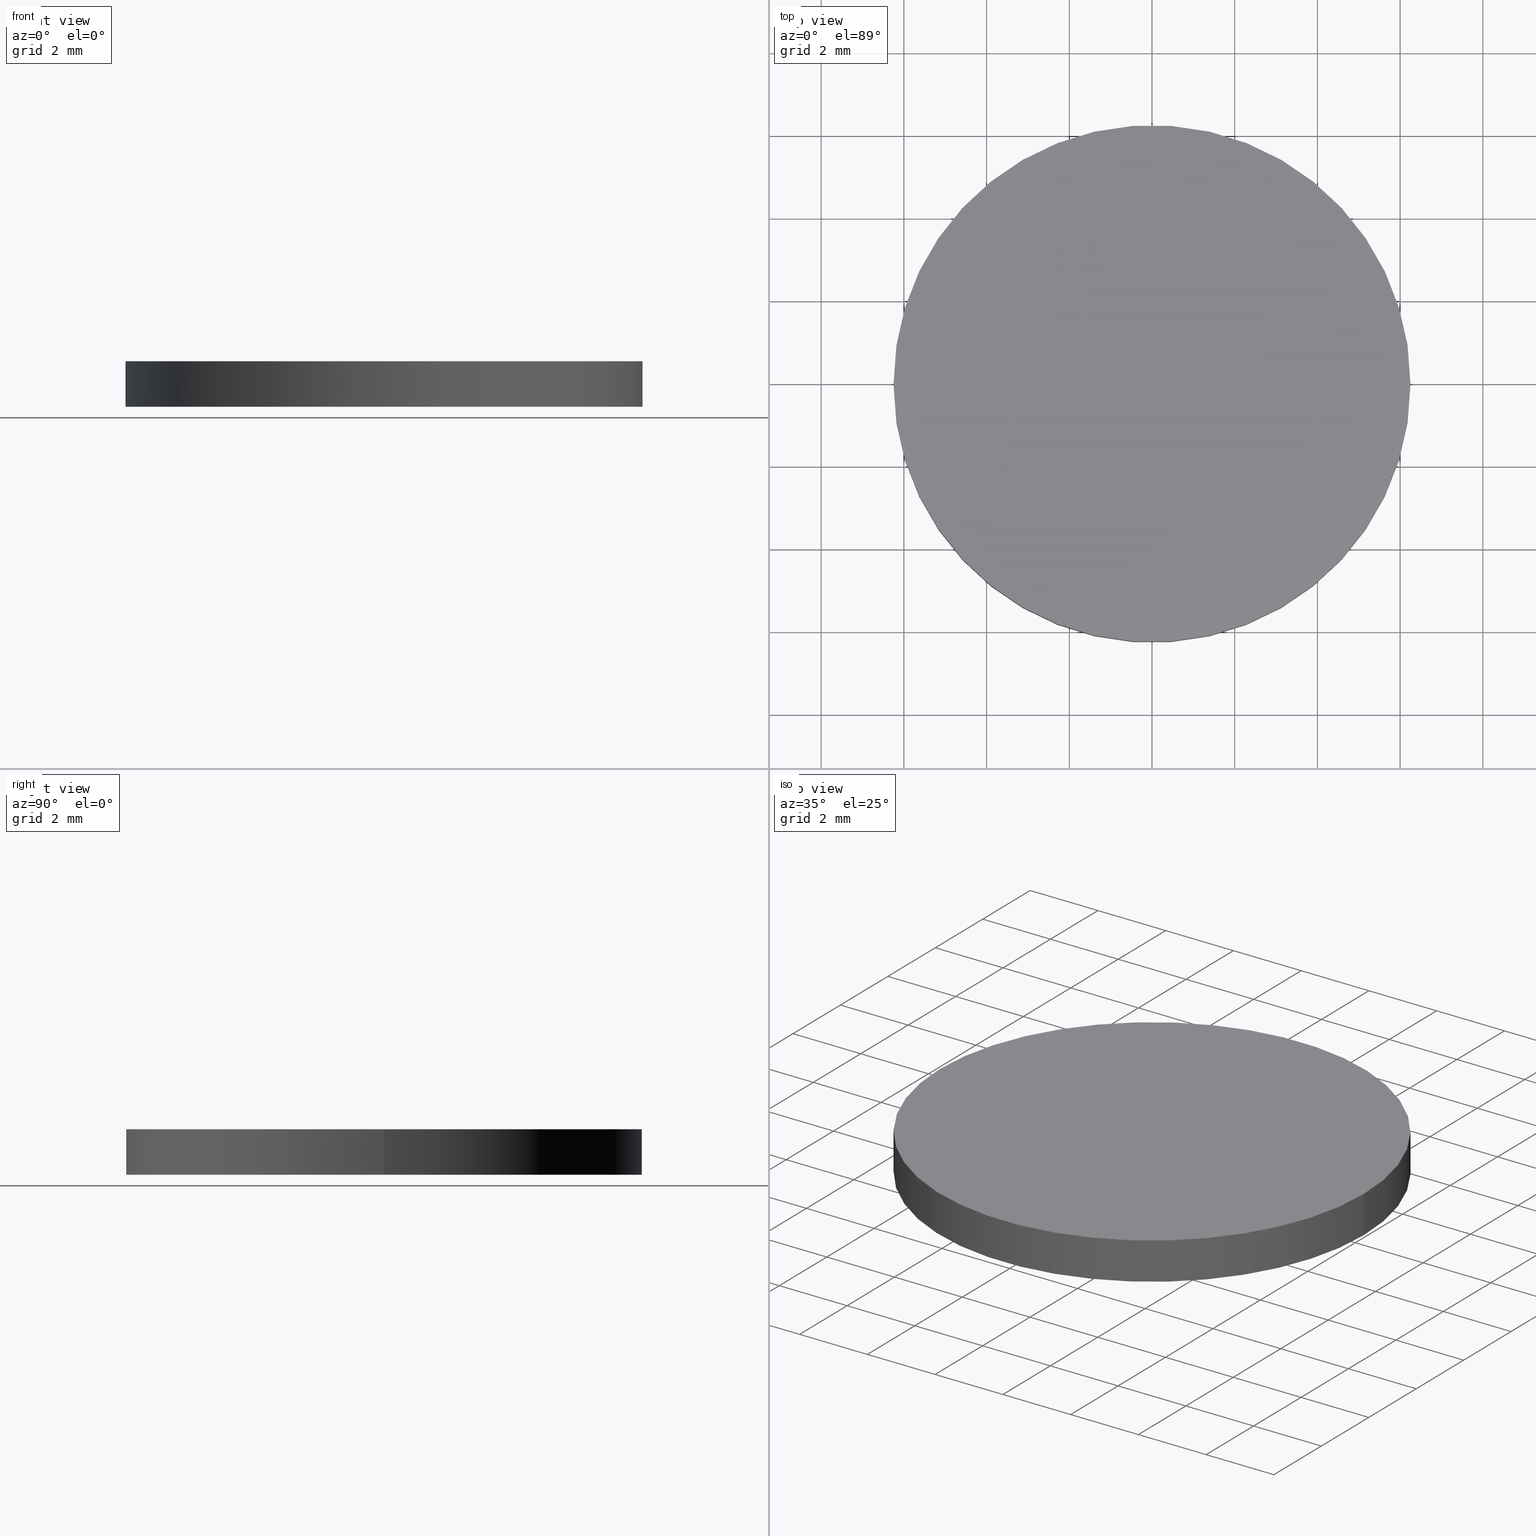
[diagram: canonical four-view strip — front | top / right | iso, engineering-drawing reading convention]
A machine part, canonical four-view strip (front | top / right | iso — engineering-drawing reading convention). The complete STEP part file that produces these views, byte-faithful:
ISO-10303-21;
HEADER;
FILE_DESCRIPTION (( 'STEP AP203' ),
    '1' );
FILE_NAME ('348500.STEP',
    '2019-07-31T06:48:11',
    ( '' ),
    ( '' ),
    'SwSTEP 2.0',
    'SolidWorks 2016',
    '' );
FILE_SCHEMA (( 'CONFIG_CONTROL_DESIGN' ));
ENDSEC;

DATA;
#1 = DIRECTION ( 'NONE',  ( 1.000000000000000000, 0.0000000000000000000, -0.0000000000000000000 ) ) ;
#2 = AXIS2_PLACEMENT_3D ( 'NONE', #172, #102, #7 ) ;
#3 = CC_DESIGN_PERSON_AND_ORGANIZATION_ASSIGNMENT ( #44, #139, ( #21 ) ) ;
#4 = PRODUCT_RELATED_PRODUCT_CATEGORY ( 'detail', '', ( #140 ) ) ;
#5 = VERTEX_POINT ( 'NONE', #84 ) ;
#6 = DATE_AND_TIME ( #57, #51 ) ;
#7 = DIRECTION ( 'NONE',  ( 1.000000000000000000, 0.0000000000000000000, 0.0000000000000000000 ) ) ;
#8 = APPROVAL_ROLE ( '' ) ;
#9 = CARTESIAN_POINT ( 'NONE',  ( 0.0000000000000000000, 0.0000000000000000000, 0.0000000000000000000 ) ) ;
#10 = PERSON_AND_ORGANIZATION ( #145, #245 ) ;
#11 =( GEOMETRIC_REPRESENTATION_CONTEXT ( 3 ) GLOBAL_UNCERTAINTY_ASSIGNED_CONTEXT ( ( #214 ) ) GLOBAL_UNIT_ASSIGNED_CONTEXT ( ( #156, #137, #72 ) ) REPRESENTATION_CONTEXT ( 'NONE', 'WORKASPACE' ) );
#12 = COORDINATED_UNIVERSAL_TIME_OFFSET ( 8, 0, .AHEAD. ) ;
#13 = SECURITY_CLASSIFICATION_LEVEL ( 'unclassified' ) ;
#14 = APPROVAL_STATUS ( 'not_yet_approved' ) ;
#15 = APPROVAL_STATUS ( 'not_yet_approved' ) ;
#16 = ORIENTED_EDGE ( 'NONE', *, *, #169, .F. ) ;
#17 = PERSON_AND_ORGANIZATION ( #145, #245 ) ;
#18 = LOCAL_TIME ( 14, 48, 11.00000000000000000, #199 ) ;
#19 = LOCAL_TIME ( 14, 48, 11.00000000000000000, #106 ) ;
#20 = APPROVAL ( #15, 'δָ��' ) ;
#21 = PRODUCT_DEFINITION_FORMATION_WITH_SPECIFIED_SOURCE ( '�κ�', '', #204, .NOT_KNOWN. ) ;
#22 = ORIENTED_EDGE ( 'NONE', *, *, #159, .T. ) ;
#23 = CALENDAR_DATE ( 2019, 31, 7 ) ;
#24 = AXIS2_PLACEMENT_3D ( 'NONE', #153, #194, #25 ) ;
#25 = DIRECTION ( 'NONE',  ( -1.000000000000000000, 0.0000000000000000000, 0.0000000000000000000 ) ) ;
#26 = CARTESIAN_POINT ( 'NONE',  ( 6.249999999999998200, 7.654042494670955600E-016, 1.100000000000000100 ) ) ;
#27 = CC_DESIGN_SECURITY_CLASSIFICATION ( #39, ( #225 ) ) ;
#28 = ORIENTED_EDGE ( 'NONE', *, *, #159, .F. ) ;
#29 = PERSON_AND_ORGANIZATION_ROLE ( 'design_supplier' ) ;
#30 = MECHANICAL_CONTEXT ( 'NONE', #105, 'mechanical' ) ;
#31 = CIRCLE ( 'NONE', #184, 6.249999999999998200 ) ;
#32 = SECURITY_CLASSIFICATION ( '', '', #49 ) ;
#33 = APPROVAL_ROLE ( '' ) ;
#34 = CC_DESIGN_PERSON_AND_ORGANIZATION_ASSIGNMENT ( #155, #92, ( #211 ) ) ;
#35 = PERSON_AND_ORGANIZATION ( #145, #245 ) ;
#36 = APPROVAL ( #122, 'δָ��' ) ;
#37 = VERTEX_POINT ( 'NONE', #230 ) ;
#38 = LOCAL_TIME ( 14, 48, 11.00000000000000000, #253 ) ;
#39 = SECURITY_CLASSIFICATION ( '', '', #13 ) ;
#40 = CARTESIAN_POINT ( 'NONE',  ( 0.0000000000000000000, 0.0000000000000000000, 0.0000000000000000000 ) ) ;
#41 = DESIGN_CONTEXT ( 'detailed design', #158, 'design' ) ;
#42 = CC_DESIGN_PERSON_AND_ORGANIZATION_ASSIGNMENT ( #168, #235, ( #225 ) ) ;
#43 = FACE_OUTER_BOUND ( 'NONE', #96, .T. ) ;
#44 = PERSON_AND_ORGANIZATION ( #145, #245 ) ;
#45 = DIRECTION ( 'NONE',  ( 1.000000000000000000, 0.0000000000000000000, 0.0000000000000000000 ) ) ;
#46 = CC_DESIGN_APPROVAL ( #36, ( #32 ) ) ;
#47 = PERSON_AND_ORGANIZATION ( #145, #245 ) ;
#48 = PERSON_AND_ORGANIZATION ( #145, #245 ) ;
#49 = SECURITY_CLASSIFICATION_LEVEL ( 'unclassified' ) ;
#50 = CYLINDRICAL_SURFACE ( 'NONE', #177, 6.249999999999998200 ) ;
#51 = LOCAL_TIME ( 14, 48, 11.00000000000000000, #175 ) ;
#52 = CC_DESIGN_PERSON_AND_ORGANIZATION_ASSIGNMENT ( #101, #178, ( #204 ) ) ;
#53 = DATE_AND_TIME ( #212, #18 ) ;
#54 = CALENDAR_DATE ( 2019, 31, 7 ) ;
#55 = PRODUCT_DEFINITION_SHAPE ( 'NONE', 'NONE',  #152 ) ;
#56 = CC_DESIGN_PERSON_AND_ORGANIZATION_ASSIGNMENT ( #10, #90, ( #140 ) ) ;
#57 = CALENDAR_DATE ( 2019, 31, 7 ) ;
#58 = APPROVAL_PERSON_ORGANIZATION ( #47, #217, #33 ) ;
#59 = PERSON_AND_ORGANIZATION ( #145, #245 ) ;
#60 = DIRECTION ( 'NONE',  ( -0.0000000000000000000, -0.0000000000000000000, -1.000000000000000000 ) ) ;
#61 = DIRECTION ( 'NONE',  ( -0.0000000000000000000, -0.0000000000000000000, -1.000000000000000000 ) ) ;
#62 = CARTESIAN_POINT ( 'NONE',  ( 0.0000000000000000000, 0.0000000000000000000, 1.100000000000000100 ) ) ;
#63 = FACE_OUTER_BOUND ( 'NONE', #193, .T. ) ;
#64 = DIRECTION ( 'NONE',  ( 0.0000000000000000000, 0.0000000000000000000, 1.000000000000000000 ) ) ;
#65 = DATE_AND_TIME ( #208, #190 ) ;
#66 = CARTESIAN_POINT ( 'NONE',  ( 0.0000000000000000000, 0.0000000000000000000, 1.100000000000000100 ) ) ;
#67 = CC_DESIGN_APPROVAL ( #110, ( #39 ) ) ;
#68 = APPROVAL_PERSON_ORGANIZATION ( #165, #20, #154 ) ;
#69 = APPROVAL_STATUS ( 'not_yet_approved' ) ;
#70 = DESIGN_CONTEXT ( 'detailed design', #71, 'design' ) ;
#71 = APPLICATION_CONTEXT ( 'configuration controlled 3d designs of mechanical parts and assemblies' ) ;
#72 =( NAMED_UNIT ( * ) SI_UNIT ( $, .STERADIAN. ) SOLID_ANGLE_UNIT ( ) );
#73 = ORIENTED_EDGE ( 'NONE', *, *, #239, .T. ) ;
#74 = CALENDAR_DATE ( 2019, 31, 7 ) ;
#75 = AXIS2_PLACEMENT_3D ( 'NONE', #9, #103, #196 ) ;
#76 = LINE ( 'NONE', #118, #113 ) ;
#77 = ORIENTED_EDGE ( 'NONE', *, *, #169, .T. ) ;
#78 = ADVANCED_FACE ( 'NONE', ( #226 ), #182, .T. ) ;
#79 = CC_DESIGN_APPROVAL ( #217, ( #211 ) ) ;
#80 = CLOSED_SHELL ( 'NONE', ( #78, #166, #188, #186 ) ) ;
#81 = DATE_AND_TIME ( #234, #38 ) ;
#82 = ADVANCED_BREP_SHAPE_REPRESENTATION ( '348500', ( #136, #233 ), #11 ) ;
#83 = PLANE ( 'NONE',  #164 ) ;
#84 = CARTESIAN_POINT ( 'NONE',  ( 6.249999999999998200, 7.654042494670955600E-016, 1.100000000000000100 ) ) ;
#85 = CIRCLE ( 'NONE', #114, 6.249999999999998200 ) ;
#86 = CARTESIAN_POINT ( 'NONE',  ( -6.249999999999998200, 0.0000000000000000000, 0.0000000000000000000 ) ) ;
#87 = CC_DESIGN_APPROVAL ( #142, ( #225 ) ) ;
#88 = DIRECTION ( 'NONE',  ( -0.0000000000000000000, -0.0000000000000000000, -1.000000000000000000 ) ) ;
#89 = APPROVAL_DATE_TIME ( #94, #20 ) ;
#90 = PERSON_AND_ORGANIZATION_ROLE ( 'design_owner' ) ;
#91 = APPLICATION_CONTEXT ( 'configuration controlled 3d designs of mechanical parts and assemblies' ) ;
#92 = PERSON_AND_ORGANIZATION_ROLE ( 'creator' ) ;
#93 = DATE_AND_TIME ( #228, #157 ) ;
#94 = DATE_AND_TIME ( #54, #19 ) ;
#95 = CC_DESIGN_DATE_AND_TIME_ASSIGNMENT ( #104, #176, ( #211 ) ) ;
#96 = EDGE_LOOP ( 'NONE', ( #171, #180 ) ) ;
#97 = LOCAL_TIME ( 14, 48, 11.00000000000000000, #144 ) ;
#98 = LOCAL_TIME ( 14, 48, 11.00000000000000000, #146 ) ;
#99 = DATE_AND_TIME ( #124, #149 ) ;
#100 = DIRECTION ( 'NONE',  ( -1.000000000000000000, 0.0000000000000000000, 0.0000000000000000000 ) ) ;
#101 = PERSON_AND_ORGANIZATION ( #145, #245 ) ;
#102 = DIRECTION ( 'NONE',  ( 0.0000000000000000000, 0.0000000000000000000, 1.000000000000000000 ) ) ;
#103 = DIRECTION ( 'NONE',  ( 0.0000000000000000000, 0.0000000000000000000, 1.000000000000000000 ) ) ;
#104 = DATE_AND_TIME ( #207, #98 ) ;
#105 = APPLICATION_CONTEXT ( 'configuration controlled 3d designs of mechanical parts and assemblies' ) ;
#106 = COORDINATED_UNIVERSAL_TIME_OFFSET ( 8, 0, .AHEAD. ) ;
#107 = PERSON_AND_ORGANIZATION_ROLE ( 'creator' ) ;
#108 = DATE_TIME_ROLE ( 'classification_date' ) ;
#109 = APPROVAL_DATE_TIME ( #93, #110 ) ;
#110 = APPROVAL ( #135, 'δָ��' ) ;
#111 = APPROVAL_DATE_TIME ( #53, #217 ) ;
#112 = APPROVAL_PERSON_ORGANIZATION ( #221, #126, #201 ) ;
#113 = VECTOR ( 'NONE', #60, 1000.000000000000000 ) ;
#114 = AXIS2_PLACEMENT_3D ( 'NONE', #198, #120, #203 ) ;
#115 = ORIENTED_EDGE ( 'NONE', *, *, #128, .F. ) ;
#116 = APPROVAL_DATE_TIME ( #99, #126 ) ;
#117 = DIRECTION ( 'NONE',  ( 0.0000000000000000000, 0.0000000000000000000, 1.000000000000000000 ) ) ;
#118 = CARTESIAN_POINT ( 'NONE',  ( -6.249999999999998200, 0.0000000000000000000, 1.100000000000000100 ) ) ;
#119 = ORIENTED_EDGE ( 'NONE', *, *, #134, .T. ) ;
#120 = DIRECTION ( 'NONE',  ( 0.0000000000000000000, 0.0000000000000000000, 1.000000000000000000 ) ) ;
#121 = DATE_TIME_ROLE ( 'classification_date' ) ;
#122 = APPROVAL_STATUS ( 'not_yet_approved' ) ;
#123 = EDGE_LOOP ( 'NONE', ( #28, #77, #119, #115 ) ) ;
#124 = CALENDAR_DATE ( 2019, 31, 7 ) ;
#125 = VECTOR ( 'NONE', #88, 1000.000000000000000 ) ;
#126 = APPROVAL ( #14, 'δָ��' ) ;
#127 = APPROVAL_DATE_TIME ( #162, #142 ) ;
#128 = EDGE_CURVE ( 'NONE', #209, #161, #76, .T. ) ;
#129 = DIRECTION ( 'NONE',  ( 0.0000000000000000000, 0.0000000000000000000, 1.000000000000000000 ) ) ;
#130 = EDGE_LOOP ( 'NONE', ( #73, #22 ) ) ;
#131 = DIRECTION ( 'NONE',  ( 0.0000000000000000000, 0.0000000000000000000, 1.000000000000000000 ) ) ;
#132 = CARTESIAN_POINT ( 'NONE',  ( -6.249999999999998200, 0.0000000000000000000, 1.100000000000000100 ) ) ;
#133 = APPROVAL_PERSON_ORGANIZATION ( #35, #110, #8 ) ;
#134 = EDGE_CURVE ( 'NONE', #37, #161, #163, .T. ) ;
#135 = APPROVAL_STATUS ( 'not_yet_approved' ) ;
#136 = MANIFOLD_SOLID_BREP ( '͹̨-����1', #80 ) ;
#137 =( NAMED_UNIT ( * ) PLANE_ANGLE_UNIT ( ) SI_UNIT ( $, .RADIAN. ) );
#138 = COORDINATED_UNIVERSAL_TIME_OFFSET ( 8, 0, .AHEAD. ) ;
#139 = PERSON_AND_ORGANIZATION_ROLE ( 'design_supplier' ) ;
#140 = PRODUCT ( '348500', '348500', '', ( #197 ) ) ;
#141 = APPROVAL_ROLE ( '' ) ;
#142 = APPROVAL ( #223, 'δָ��' ) ;
#143 = ORIENTED_EDGE ( 'NONE', *, *, #148, .T. ) ;
#144 = COORDINATED_UNIVERSAL_TIME_OFFSET ( 8, 0, .AHEAD. ) ;
#145 = PERSON ( 'δָ��', 'δָ��', 'δָ��', ('δָ��'), ('δָ��'), ('δָ��') ) ;
#146 = COORDINATED_UNIVERSAL_TIME_OFFSET ( 8, 0, .AHEAD. ) ;
#147 = COORDINATED_UNIVERSAL_TIME_OFFSET ( 8, 0, .AHEAD. ) ;
#148 = EDGE_CURVE ( 'NONE', #161, #37, #249, .T. ) ;
#149 = LOCAL_TIME ( 14, 48, 11.00000000000000000, #138 ) ;
#150 = CC_DESIGN_APPROVAL ( #20, ( #21 ) ) ;
#151 = CARTESIAN_POINT ( 'NONE',  ( 0.0000000000000000000, 0.0000000000000000000, 0.0000000000000000000 ) ) ;
#152 = PRODUCT_DEFINITION ( 'δ֪', '', #21, #70 ) ;
#153 = CARTESIAN_POINT ( 'NONE',  ( 0.0000000000000000000, 0.0000000000000000000, 1.100000000000000100 ) ) ;
#154 = APPROVAL_ROLE ( '' ) ;
#155 = PERSON_AND_ORGANIZATION ( #145, #245 ) ;
#156 =( LENGTH_UNIT ( ) NAMED_UNIT ( * ) SI_UNIT ( .MILLI., .METRE. ) );
#157 = LOCAL_TIME ( 14, 48, 11.00000000000000000, #244 ) ;
#158 = APPLICATION_CONTEXT ( 'configuration controlled 3d designs of mechanical parts and assemblies' ) ;
#159 = EDGE_CURVE ( 'NONE', #5, #209, #31, .T. ) ;
#160 = PERSON_AND_ORGANIZATION_ROLE ( 'classification_officer' ) ;
#161 = VERTEX_POINT ( 'NONE', #86 ) ;
#162 = DATE_AND_TIME ( #23, #97 ) ;
#163 = CIRCLE ( 'NONE', #222, 6.249999999999998200 ) ;
#164 = AXIS2_PLACEMENT_3D ( 'NONE', #151, #64, #192 ) ;
#165 = PERSON_AND_ORGANIZATION ( #145, #245 ) ;
#166 = ADVANCED_FACE ( 'NONE', ( #63 ), #50, .T. ) ;
#167 = CC_DESIGN_PERSON_AND_ORGANIZATION_ASSIGNMENT ( #48, #29, ( #225 ) ) ;
#168 = PERSON_AND_ORGANIZATION ( #145, #245 ) ;
#169 = EDGE_CURVE ( 'NONE', #5, #37, #231, .T. ) ;
#170 = DIRECTION ( 'NONE',  ( 1.000000000000000000, 0.0000000000000000000, 0.0000000000000000000 ) ) ;
#171 = ORIENTED_EDGE ( 'NONE', *, *, #148, .F. ) ;
#172 = CARTESIAN_POINT ( 'NONE',  ( 0.0000000000000000000, 0.0000000000000000000, 0.0000000000000000000 ) ) ;
#173 = DIRECTION ( 'NONE',  ( 0.0000000000000000000, 0.0000000000000000000, 1.000000000000000000 ) ) ;
#174 = APPLICATION_PROTOCOL_DEFINITION ( 'international standard', 'config_control_design', 1994, #91 ) ;
#175 = COORDINATED_UNIVERSAL_TIME_OFFSET ( 8, 0, .AHEAD. ) ;
#176 = DATE_TIME_ROLE ( 'creation_date' ) ;
#177 = AXIS2_PLACEMENT_3D ( 'NONE', #216, #61, #100 ) ;
#178 = PERSON_AND_ORGANIZATION_ROLE ( 'design_owner' ) ;
#179 = PERSON_AND_ORGANIZATION_ROLE ( 'classification_officer' ) ;
#180 = ORIENTED_EDGE ( 'NONE', *, *, #134, .F. ) ;
#181 = CC_DESIGN_PERSON_AND_ORGANIZATION_ASSIGNMENT ( #246, #160, ( #39 ) ) ;
#182 = CYLINDRICAL_SURFACE ( 'NONE', #24, 6.249999999999998200 ) ;
#183 = DATE_AND_TIME ( #74, #206 ) ;
#184 = AXIS2_PLACEMENT_3D ( 'NONE', #62, #173, #232 ) ;
#185 = ORIENTED_EDGE ( 'NONE', *, *, #128, .T. ) ;
#186 = ADVANCED_FACE ( 'NONE', ( #43 ), #83, .F. ) ;
#187 = APPROVAL_PERSON_ORGANIZATION ( #252, #142, #236 ) ;
#188 = ADVANCED_FACE ( 'NONE', ( #243 ), #219, .T. ) ;
#189 = SHAPE_DEFINITION_REPRESENTATION ( #55, #82 ) ;
#190 = LOCAL_TIME ( 14, 48, 11.00000000000000000, #12 ) ;
#191 = CC_DESIGN_PERSON_AND_ORGANIZATION_ASSIGNMENT ( #59, #179, ( #32 ) ) ;
#192 = DIRECTION ( 'NONE',  ( 1.000000000000000000, 0.0000000000000000000, -0.0000000000000000000 ) ) ;
#193 = EDGE_LOOP ( 'NONE', ( #16, #218, #185, #143 ) ) ;
#194 = DIRECTION ( 'NONE',  ( -0.0000000000000000000, -0.0000000000000000000, -1.000000000000000000 ) ) ;
#195 = CC_DESIGN_APPROVAL ( #126, ( #152 ) ) ;
#196 = DIRECTION ( 'NONE',  ( 1.000000000000000000, 0.0000000000000000000, 0.0000000000000000000 ) ) ;
#197 = MECHANICAL_CONTEXT ( 'NONE', #91, 'mechanical' ) ;
#198 = CARTESIAN_POINT ( 'NONE',  ( 0.0000000000000000000, 0.0000000000000000000, 1.100000000000000100 ) ) ;
#199 = COORDINATED_UNIVERSAL_TIME_OFFSET ( 8, 0, .AHEAD. ) ;
#200 = APPROVAL_DATE_TIME ( #81, #36 ) ;
#201 = APPROVAL_ROLE ( '' ) ;
#202 = PRODUCT_RELATED_PRODUCT_CATEGORY ( 'detail', '', ( #204 ) ) ;
#203 = DIRECTION ( 'NONE',  ( 1.000000000000000000, 0.0000000000000000000, 0.0000000000000000000 ) ) ;
#204 = PRODUCT ( '348500', '348500', '', ( #30 ) ) ;
#205 = CC_DESIGN_SECURITY_CLASSIFICATION ( #32, ( #21 ) ) ;
#206 = LOCAL_TIME ( 14, 48, 11.00000000000000000, #147 ) ;
#207 = CALENDAR_DATE ( 2019, 31, 7 ) ;
#208 = CALENDAR_DATE ( 2019, 31, 7 ) ;
#209 = VERTEX_POINT ( 'NONE', #132 ) ;
#210 = APPROVAL_PERSON_ORGANIZATION ( #213, #36, #141 ) ;
#211 = PRODUCT_DEFINITION ( 'δ֪', '', #225, #41 ) ;
#212 = CALENDAR_DATE ( 2019, 31, 7 ) ;
#213 = PERSON_AND_ORGANIZATION ( #145, #245 ) ;
#214 = UNCERTAINTY_MEASURE_WITH_UNIT (LENGTH_MEASURE( 1.000000000000000100E-005 ), #156, 'distance_accuracy_value', 'NONE');
#215 = CARTESIAN_POINT ( 'NONE',  ( 0.0000000000000000000, 0.0000000000000000000, 0.0000000000000000000 ) ) ;
#216 = CARTESIAN_POINT ( 'NONE',  ( 0.0000000000000000000, 0.0000000000000000000, 1.100000000000000100 ) ) ;
#217 = APPROVAL ( #69, 'δָ��' ) ;
#218 = ORIENTED_EDGE ( 'NONE', *, *, #239, .F. ) ;
#219 = PLANE ( 'NONE',  #229 ) ;
#220 = PERSON_AND_ORGANIZATION_ROLE ( 'creator' ) ;
#221 = PERSON_AND_ORGANIZATION ( #145, #245 ) ;
#222 = AXIS2_PLACEMENT_3D ( 'NONE', #40, #131, #170 ) ;
#223 = APPROVAL_STATUS ( 'not_yet_approved' ) ;
#224 = APPLICATION_PROTOCOL_DEFINITION ( 'international standard', 'config_control_design', 1994, #158 ) ;
#225 = PRODUCT_DEFINITION_FORMATION_WITH_SPECIFIED_SOURCE ( '�κ�', '', #140, .NOT_KNOWN. ) ;
#226 = FACE_OUTER_BOUND ( 'NONE', #123, .T. ) ;
#227 = CC_DESIGN_PERSON_AND_ORGANIZATION_ASSIGNMENT ( #17, #107, ( #152 ) ) ;
#228 = CALENDAR_DATE ( 2019, 31, 7 ) ;
#229 = AXIS2_PLACEMENT_3D ( 'NONE', #66, #117, #1 ) ;
#230 = CARTESIAN_POINT ( 'NONE',  ( 6.249999999999998200, 7.654042494670955600E-016, 0.0000000000000000000 ) ) ;
#231 = LINE ( 'NONE', #26, #125 ) ;
#232 = DIRECTION ( 'NONE',  ( 1.000000000000000000, 0.0000000000000000000, 0.0000000000000000000 ) ) ;
#233 = AXIS2_PLACEMENT_3D ( 'NONE', #215, #129, #45 ) ;
#234 = CALENDAR_DATE ( 2019, 31, 7 ) ;
#235 = PERSON_AND_ORGANIZATION_ROLE ( 'creator' ) ;
#236 = APPROVAL_ROLE ( '' ) ;
#237 = APPLICATION_PROTOCOL_DEFINITION ( 'international standard', 'config_control_design', 1994, #105 ) ;
#238 = DATE_TIME_ROLE ( 'creation_date' ) ;
#239 = EDGE_CURVE ( 'NONE', #209, #5, #85, .T. ) ;
#240 = CC_DESIGN_PERSON_AND_ORGANIZATION_ASSIGNMENT ( #250, #220, ( #21 ) ) ;
#241 = APPLICATION_PROTOCOL_DEFINITION ( 'international standard', 'config_control_design', 1994, #71 ) ;
#242 = CC_DESIGN_DATE_AND_TIME_ASSIGNMENT ( #65, #121, ( #39 ) ) ;
#243 = FACE_OUTER_BOUND ( 'NONE', #130, .T. ) ;
#244 = COORDINATED_UNIVERSAL_TIME_OFFSET ( 8, 0, .AHEAD. ) ;
#245 = ORGANIZATION ( 'δָ��', 'δָ��', '' ) ;
#246 = PERSON_AND_ORGANIZATION ( #145, #245 ) ;
#247 = PRODUCT_DEFINITION_SHAPE ( 'NONE', 'NONE',  #211 ) ;
#248 = CC_DESIGN_DATE_AND_TIME_ASSIGNMENT ( #183, #108, ( #32 ) ) ;
#249 = CIRCLE ( 'NONE', #2, 6.249999999999998200 ) ;
#250 = PERSON_AND_ORGANIZATION ( #145, #245 ) ;
#251 = CC_DESIGN_DATE_AND_TIME_ASSIGNMENT ( #6, #238, ( #152 ) ) ;
#252 = PERSON_AND_ORGANIZATION ( #145, #245 ) ;
#253 = COORDINATED_UNIVERSAL_TIME_OFFSET ( 8, 0, .AHEAD. ) ;
ENDSEC;
END-ISO-10303-21;
